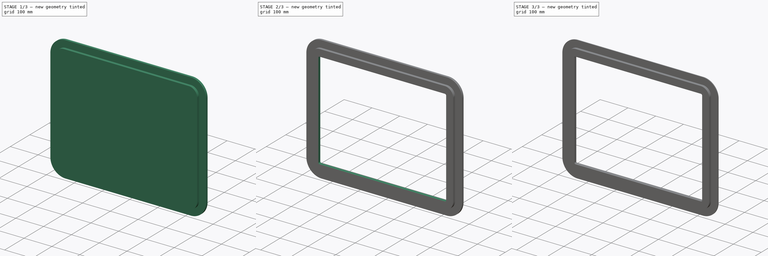
[diagram: build sequence overview — one tinted view per stage of 3, left to right]
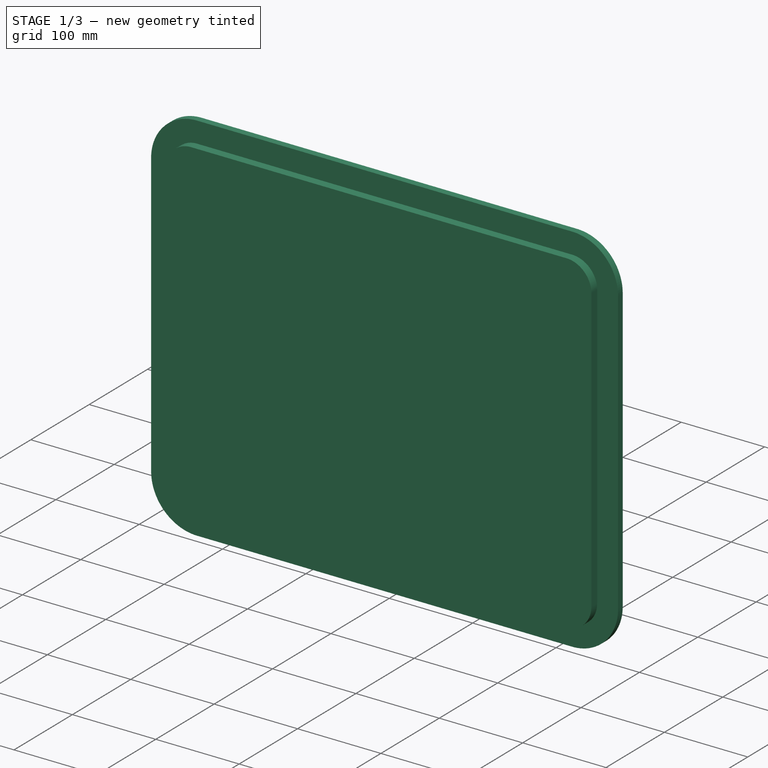
[diagram: stage 1 of 3 — iso view after this stage's code; geometry added in this stage tinted green]
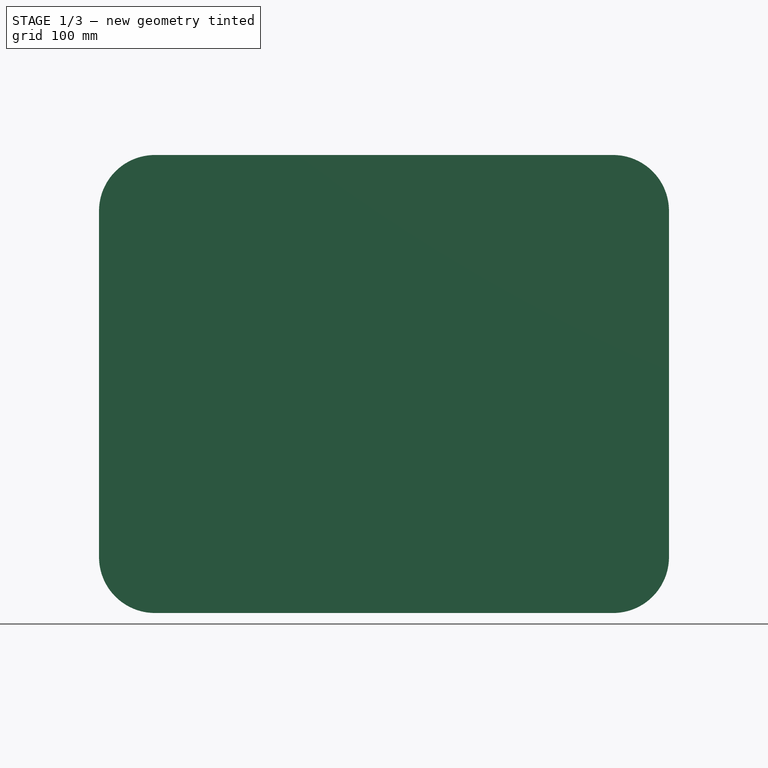
[diagram: stage 1 of 3 — front view after this stage's code; geometry added in this stage tinted green]
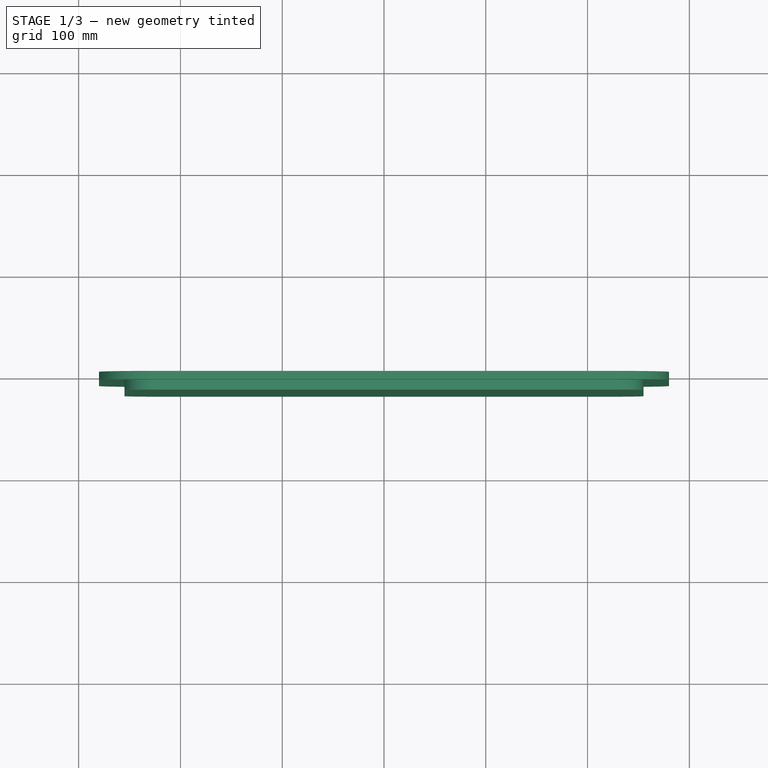
[diagram: stage 1 of 3 — top view after this stage's code; geometry added in this stage tinted green]
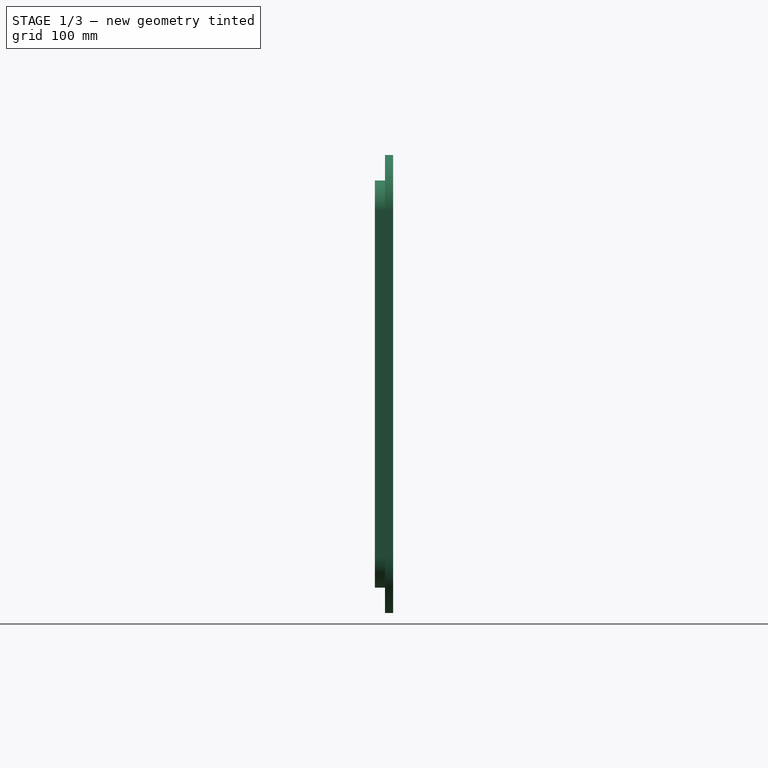
[diagram: stage 1 of 3 — right view after this stage's code; geometry added in this stage tinted green]
FCSTD DOCUMENT  (FreeCAD 0.20R29603 (Git))
Label: FensterRahmen
License: All rights reserved
LicenseURL: http://en.wikipedia.org/wiki/All_rights_reserved
objects: Sketcher::SketchObject×5, PartDesign::Pocket×3, PartDesign::Pad×2, PartDesign::Chamfer×1, PartDesign::Body×1
note: 18 computed .brp shape members not serialized (recipe doc carries the construction recipe); baked Part::Feature solids carry a one-line shape summary decoded from their .brp

FEATURE [Sketcher::SketchObject] Sketch
  FullyConstrained = true
  MapMode = 5
  Placement = pos=(0,0,0) rot=(1,0,0;1.5708rad)
  Support = -> [XZ_Plane]
  sketch-geometry (13):
    g0: LineSegment StartX=-280 StartY=170 StartZ=0 EndX=-280 EndY=-170 EndZ=0
    g1: LineSegment StartX=-225 StartY=-225 StartZ=0 EndX=225 EndY=-225 EndZ=0
    g2: LineSegment StartX=280 StartY=-170 StartZ=0 EndX=280 EndY=170 EndZ=0
    g3: LineSegment StartX=225 StartY=225 StartZ=0 EndX=-225 EndY=225 EndZ=0
    g4: GeomPoint X=0 Y=0 Z=0
    g5: ArcOfCircle CenterX=-225 CenterY=170 CenterZ=0 NormalX=0 NormalY=0 NormalZ=1 AngleXU=0 Radius=55 StartAngle=1.5708 EndAngle=3.14159
    g6: GeomPoint X=-280 Y=225 Z=0
    g7: ArcOfCircle CenterX=225 CenterY=170 CenterZ=0 NormalX=0 NormalY=0 NormalZ=1 AngleXU=0 Radius=55 StartAngle=1e-16 EndAngle=1.5708
    g8: GeomPoint X=280 Y=225 Z=0
    g9: ArcOfCircle CenterX=225 CenterY=-170 CenterZ=0 NormalX=0 NormalY=0 NormalZ=1 AngleXU=0 Radius=55 StartAngle=4.71239 EndAngle=6.28319
    g10: GeomPoint X=280 Y=-225 Z=0
    g11: ArcOfCircle CenterX=-225 CenterY=-170 CenterZ=0 NormalX=0 NormalY=0 NormalZ=1 AngleXU=0 Radius=55 StartAngle=3.14159 EndAngle=4.71239
    g12: GeomPoint X=-280 Y=-225 Z=0
  constraints (28):
    c: Horizontal(g1)
    c: Horizontal(g3)
    c: Vertical(g0)
    c: Vertical(g2)
    c: Symmetric(g10,g6,g4)
    c: Coincident(g4,g-1)
    c: DistanceX(g6,g8) = 560
    c: DistanceY(g10,g8) = 450
    c: PointOnObject(g6,g0)
    c: PointOnObject(g6,g3)
    c: Tangent(g0,g5) = -1.5708
    c: Tangent(g3,g5) = -1.5708
    c: PointOnObject(g8,g2)
    c: PointOnObject(g8,g3)
    c: Tangent(g2,g7) = -1.5708
    c: Tangent(g3,g7) = -1.5708
    c: PointOnObject(g10,g1)
    c: PointOnObject(g10,g2)
    c: Tangent(g1,g9) = -1.5708
    c: Tangent(g2,g9) = -1.5708
    c: PointOnObject(g12,g0)
    c: PointOnObject(g12,g1)
    c: Tangent(g0,g11) = -1.5708
    c: Tangent(g1,g11) = -1.5708
    c: Equal(g5,g7)
    c: Equal(g7,g9)
    c: Equal(g9,g11)
    c: Distance(g3) = 450
FEATURE [PartDesign::Pad] Pad  label="Platten_Rohling"
  Direction = (0,-1,-2e-16)
  Length = 8
  Length2 = 10
  Placement = pos=(0,0,0) rot=(1,0,0;1.5708rad)
  Profile = -> Sketch
  ReferenceAxis = -> Sketch [N_Axis]
  Type = 0
FEATURE [Sketcher::SketchObject] Sketch001
  ExternalGeometry = -> [Pad]
  FullyConstrained = true
  MapMode = 5
  Placement = pos=(0,-8,-1.8e-15) rot=(1,0,0;1.5708rad)
  Support = -> [Pad]
  sketch-geometry (13):
    g0: LineSegment StartX=-255 StartY=170 StartZ=0 EndX=-255 EndY=-170 EndZ=0
    g1: LineSegment StartX=-225 StartY=-200 StartZ=0 EndX=225 EndY=-200 EndZ=0
    g2: LineSegment StartX=255 StartY=-170 StartZ=0 EndX=255 EndY=170 EndZ=0
    g3: LineSegment StartX=225 StartY=200 StartZ=0 EndX=-225 EndY=200 EndZ=0
    g4: GeomPoint X=-9.2e-15 Y=0 Z=0
    g5: ArcOfCircle CenterX=-225 CenterY=170 CenterZ=0 NormalX=0 NormalY=0 NormalZ=1 AngleXU=0 Radius=30 StartAngle=1.5708 EndAngle=3.14159
    g6: GeomPoint X=-255 Y=200 Z=0
    g7: ArcOfCircle CenterX=225 CenterY=170 CenterZ=0 NormalX=0 NormalY=0 NormalZ=1 AngleXU=0 Radius=30 StartAngle=-5.3149e-12 EndAngle=1.5708
    g8: GeomPoint X=255 Y=200 Z=0
    g9: ArcOfCircle CenterX=225 CenterY=-170 CenterZ=0 NormalX=0 NormalY=0 NormalZ=1 AngleXU=0 Radius=30 StartAngle=4.71239 EndAngle=6.28319
    g10: GeomPoint X=255 Y=-200 Z=0
    g11: ArcOfCircle CenterX=-225 CenterY=-170 CenterZ=0 NormalX=0 NormalY=0 NormalZ=1 AngleXU=0 Radius=30 StartAngle=3.14159 EndAngle=4.71239
    g12: GeomPoint X=-255 Y=-200 Z=0
  constraints (27):
    c: Horizontal(g1)
    c: Horizontal(g3)
    c: Vertical(g0)
    c: Vertical(g2)
    c: Symmetric(g10,g6,g4)
    c: PointOnObject(g4,g-1)
    c: PointOnObject(g6,g0)
    c: PointOnObject(g6,g3)
    c: Tangent(g0,g5) = -1.5708
    c: Tangent(g3,g5) = -1.5708
    c: PointOnObject(g8,g2)
    c: PointOnObject(g8,g3)
    c: Tangent(g2,g7) = -1.5708
    c: Tangent(g3,g7) = -1.5708
    c: PointOnObject(g10,g1)
    c: PointOnObject(g10,g2)
    c: Tangent(g1,g9) = -1.5708
    c: Tangent(g2,g9) = -1.5708
    c: PointOnObject(g12,g0)
    c: PointOnObject(g12,g1)
    c: Tangent(g0,g11) = -1.5708
    c: Tangent(g1,g11) = -1.5708
    c: Equal(g2,g0)
    c: Equal(g3,g1)
    c: Distance(g-3,g1) = 25
    c: Symmetric(g0,g2,g-2)
    c: Coincident(g7,g-5)
FEATURE [PartDesign::Pad] Pad001  label="EinbauRahmen"
  BaseFeature = -> Pad
  Direction = (0,-1,-2e-16)
  Length = 10
  Length2 = 10
  Placement = pos=(0,0,0) rot=(1,0,0;1.5708rad)
  Profile = -> Sketch001
  ReferenceAxis = -> Sketch001 [N_Axis]
  Type = 0
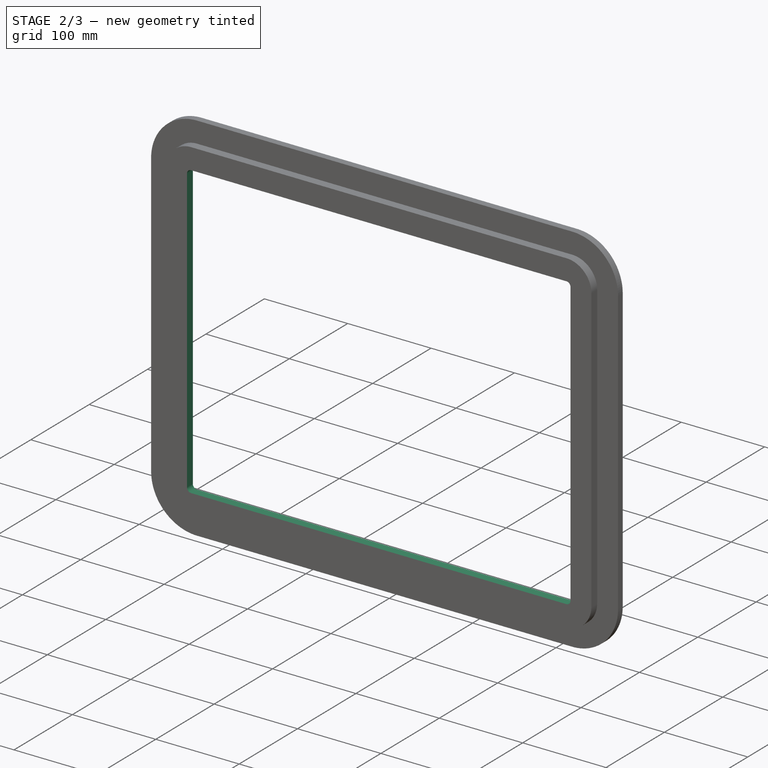
[diagram: stage 2 of 3 — iso view after this stage's code; geometry added in this stage tinted green]
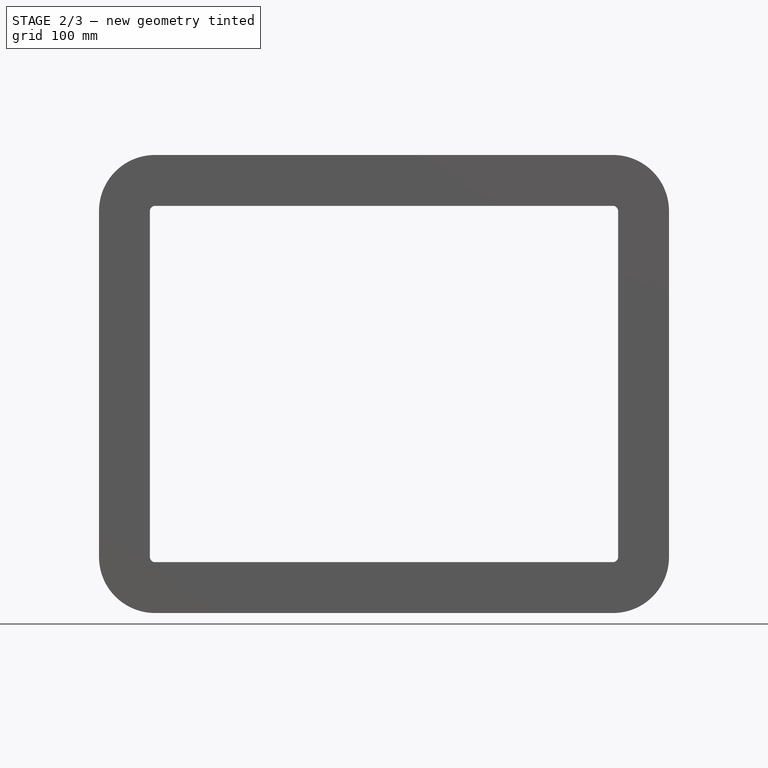
[diagram: stage 2 of 3 — front view after this stage's code; geometry added in this stage tinted green]
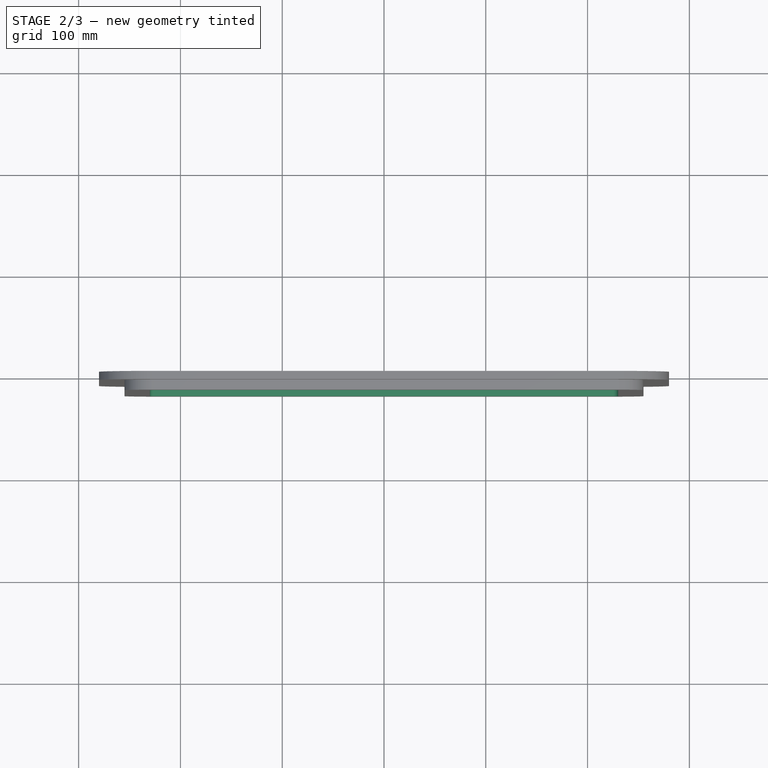
[diagram: stage 2 of 3 — top view after this stage's code; geometry added in this stage tinted green]
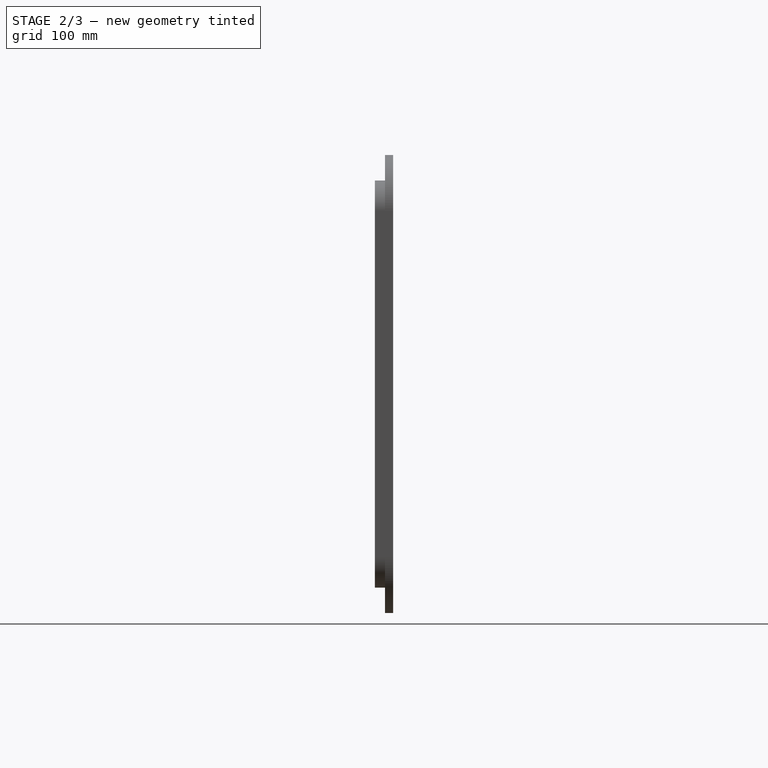
[diagram: stage 2 of 3 — right view after this stage's code; geometry added in this stage tinted green]
FEATURE [Sketcher::SketchObject] Sketch002
  ExternalGeometry = -> [Pad001]
  FullyConstrained = true
  MapMode = 5
  Placement = pos=(0,0,0) rot=(-1,0,0;1.5708rad)
  Support = -> [Pad001]
  sketch-geometry (13):
    g0: LineSegment StartX=-230 StartY=170 StartZ=0 EndX=-230 EndY=-170 EndZ=0
    g1: LineSegment StartX=-225 StartY=-175 StartZ=0 EndX=225 EndY=-175 EndZ=0
    g2: LineSegment StartX=230 StartY=-170 StartZ=0 EndX=230 EndY=170 EndZ=0
    g3: LineSegment StartX=225 StartY=175 StartZ=0 EndX=-225 EndY=175 EndZ=0
    g4: GeomPoint X=0 Y=0 Z=0
    g5: ArcOfCircle CenterX=-225 CenterY=170 CenterZ=0 NormalX=0 NormalY=0 NormalZ=1 AngleXU=0 Radius=5 StartAngle=1.5708 EndAngle=3.14159
    g6: GeomPoint X=-230 Y=175 Z=0
    g7: ArcOfCircle CenterX=225 CenterY=170 CenterZ=0 NormalX=0 NormalY=0 NormalZ=1 AngleXU=0 Radius=5 StartAngle=-1.8e-15 EndAngle=1.5708
    g8: GeomPoint X=230 Y=175 Z=0
    g9: ArcOfCircle CenterX=-225 CenterY=-170 CenterZ=0 NormalX=0 NormalY=0 NormalZ=1 AngleXU=0 Radius=5 StartAngle=3.14159 EndAngle=4.71239
    g10: GeomPoint X=-230 Y=-175 Z=0
    g11: ArcOfCircle CenterX=225 CenterY=-170 CenterZ=0 NormalX=0 NormalY=0 NormalZ=1 AngleXU=0 Radius=5 StartAngle=4.71239 EndAngle=6.28319
    g12: GeomPoint X=230 Y=-175 Z=0
  constraints (27):
    c: Horizontal(g1)
    c: Horizontal(g3)
    c: Vertical(g0)
    c: Vertical(g2)
    c: Symmetric(g12,g6,g4)
    c: Coincident(g4,g-1)
    c: PointOnObject(g6,g0)
    c: PointOnObject(g6,g3)
    c: Tangent(g0,g5) = -1.5708
    c: Tangent(g3,g5) = -1.5708
    c: PointOnObject(g8,g2)
    c: PointOnObject(g8,g3)
    c: Tangent(g2,g7) = -1.5708
    c: Tangent(g3,g7) = -1.5708
    c: PointOnObject(g10,g0)
    c: PointOnObject(g10,g1)
    c: Tangent(g0,g9) = -1.5708
    c: Tangent(g1,g9) = -1.5708
    c: PointOnObject(g12,g1)
    c: PointOnObject(g12,g2)
    c: Tangent(g1,g11) = -1.5708
    c: Tangent(g2,g11) = -1.5708
    c: Distance(g-4,g2) = 50
    c: Equal(g5,g7)
    c: Equal(g7,g11)
    c: Equal(g11,g9)
    c: Coincident(g-4,g11)
FEATURE [PartDesign::Pocket] Pocket  label="FensterAusschnitt"
  BaseFeature = -> Pad001
  Direction = (0,-1,-2e-16)
  Length = 18
  Length2 = 5
  Placement = pos=(0,0,0) rot=(1,0,0;1.5708rad)
  Profile = -> Sketch002
  ReferenceAxis = -> Sketch002 [N_Axis]
  Type = 0
FEATURE [Sketcher::SketchObject] Sketch003
  ExternalGeometry = -> [Pocket]
  FullyConstrained = true
  MapMode = 5
  Placement = pos=(0,0,0) rot=(-1,0,0;1.5708rad)
  Support = -> [Pocket]
  sketch-geometry (13):
    g0: LineSegment StartX=-250 StartY=170 StartZ=0 EndX=-250 EndY=-170 EndZ=0
    g1: LineSegment StartX=-225 StartY=-195 StartZ=0 EndX=225 EndY=-195 EndZ=0
    g2: LineSegment StartX=250 StartY=-170 StartZ=0 EndX=250 EndY=170 EndZ=0
    g3: LineSegment StartX=225 StartY=195 StartZ=0 EndX=-225 EndY=195 EndZ=0
    g4: GeomPoint X=0 Y=0 Z=0
    g5: ArcOfCircle CenterX=-225 CenterY=170 CenterZ=0 NormalX=0 NormalY=0 NormalZ=1 AngleXU=0 Radius=25 StartAngle=1.5708 EndAngle=3.14159
    g6: GeomPoint X=-250 Y=195 Z=0
    g7: ArcOfCircle CenterX=225 CenterY=170 CenterZ=0 NormalX=0 NormalY=0 NormalZ=1 AngleXU=0 Radius=25 StartAngle=4e-16 EndAngle=1.5708
    g8: GeomPoint X=250 Y=195 Z=0
    g9: ArcOfCircle CenterX=225 CenterY=-170 CenterZ=0 NormalX=0 NormalY=0 NormalZ=1 AngleXU=0 Radius=25 StartAngle=4.71239 EndAngle=6.28319
    g10: GeomPoint X=250 Y=-195 Z=0
    g11: ArcOfCircle CenterX=-225 CenterY=-170 CenterZ=0 NormalX=0 NormalY=0 NormalZ=1 AngleXU=0 Radius=25 StartAngle=3.14159 EndAngle=4.71239
    g12: GeomPoint X=-250 Y=-195 Z=0
  constraints (27):
    c: Horizontal(g1)
    c: Horizontal(g3)
    c: Vertical(g0)
    c: Vertical(g2)
    c: Symmetric(g10,g6,g4)
    c: Coincident(g4,g-1)
    c: PointOnObject(g6,g0)
    c: PointOnObject(g6,g3)
    c: Tangent(g0,g5) = -1.5708
    c: Tangent(g3,g5) = -1.5708
    c: PointOnObject(g8,g2)
    c: PointOnObject(g8,g3)
    c: Tangent(g2,g7) = -1.5708
    c: Tangent(g3,g7) = -1.5708
    c: PointOnObject(g10,g1)
    c: PointOnObject(g10,g2)
    c: Tangent(g1,g9) = -1.5708
    c: Tangent(g2,g9) = -1.5708
    c: PointOnObject(g12,g0)
    c: PointOnObject(g12,g1)
    c: Tangent(g0,g11) = -1.5708
    c: Tangent(g1,g11) = -1.5708
    c: Distance(g2,g-4) = 30
    c: Equal(g11,g5)
    c: Equal(g5,g7)
    c: Equal(g7,g9)
    c: Coincident(g9,g-3)
FEATURE [PartDesign::Pocket] Pocket001
  BaseFeature = -> Pocket
  Direction = (0,-1,-2e-16)
  Length = 8
  Length2 = 5
  Placement = pos=(0,0,0) rot=(1,0,0;1.5708rad)
  Profile = -> Sketch003
  ReferenceAxis = -> Sketch003 [N_Axis]
  Type = 0
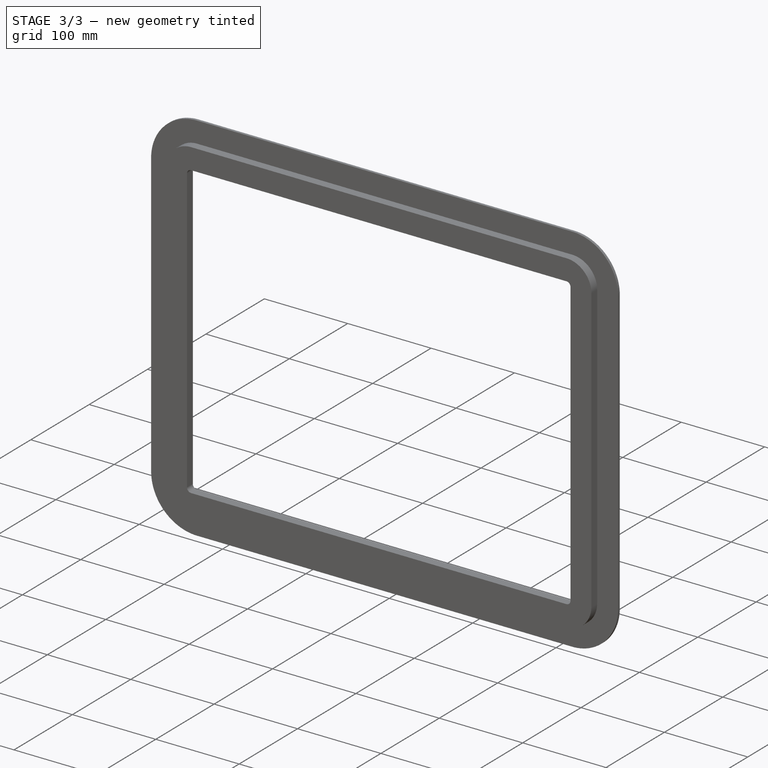
[diagram: stage 3 of 3 — iso view after this stage's code; geometry added in this stage tinted green]
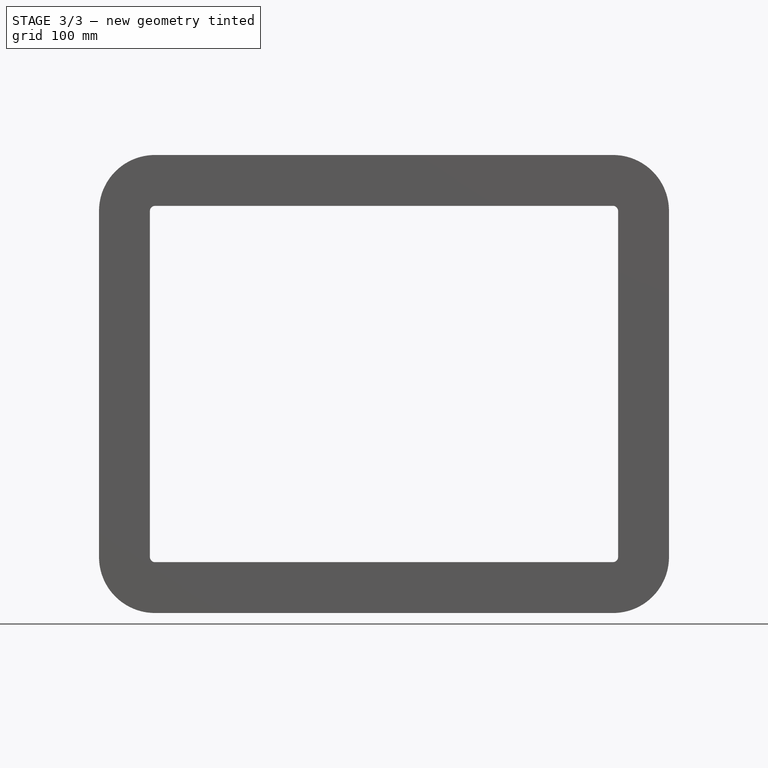
[diagram: stage 3 of 3 — front view after this stage's code; geometry added in this stage tinted green]
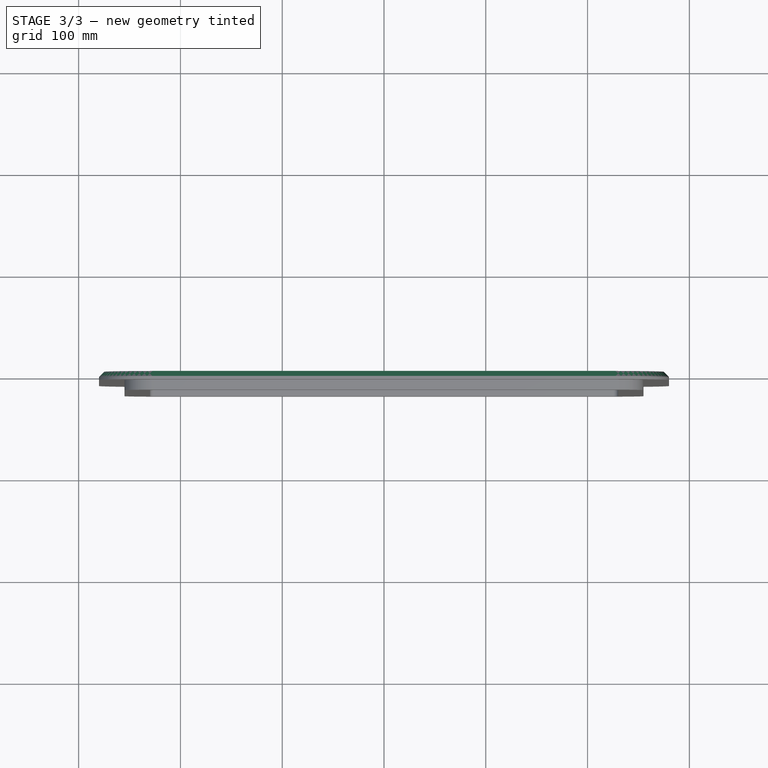
[diagram: stage 3 of 3 — top view after this stage's code; geometry added in this stage tinted green]
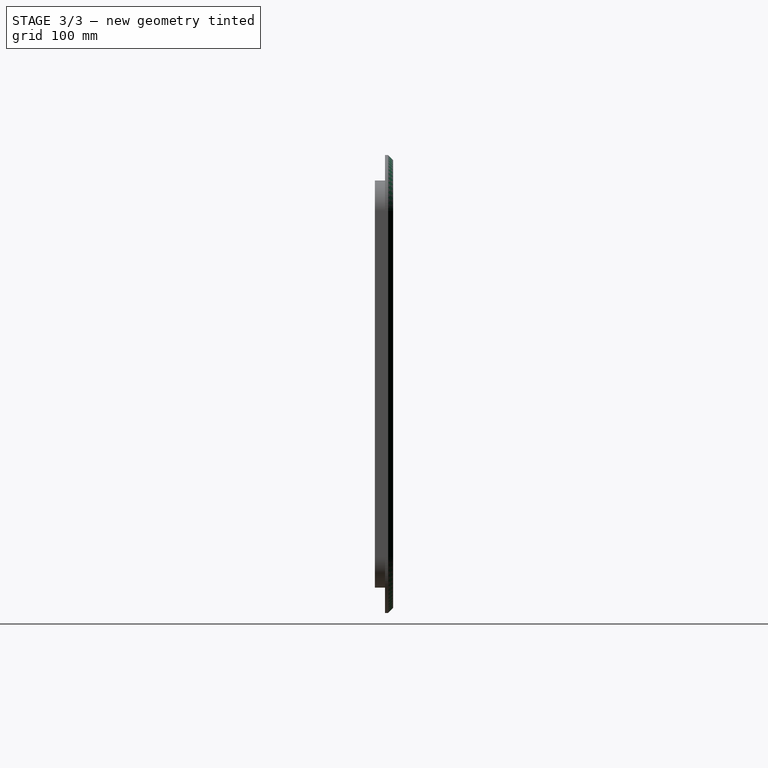
[diagram: stage 3 of 3 — right view after this stage's code; geometry added in this stage tinted green]
FEATURE [Sketcher::SketchObject] Sketch004
  ExternalGeometry = -> [Pocket001]
  FullyConstrained = true
  MapMode = 5
  Placement = pos=(0,-8,-1.8e-15) rot=(-1,0,0;1.5708rad)
  Support = -> [Pocket001]
  sketch-geometry (26):
    g0: LineSegment StartX=-240 StartY=170 StartZ=0 EndX=-240 EndY=-170 EndZ=0
    g1: LineSegment StartX=-225 StartY=-185 StartZ=0 EndX=225 EndY=-185 EndZ=0
    g2: LineSegment StartX=240 StartY=-170 StartZ=0 EndX=240 EndY=170 EndZ=0
    g3: LineSegment StartX=225 StartY=185 StartZ=0 EndX=-225 EndY=185 EndZ=0
    g4: GeomPoint X=0 Y=0 Z=0
    g5: ArcOfCircle CenterX=-225 CenterY=170 CenterZ=0 NormalX=0 NormalY=0 NormalZ=1 AngleXU=0 Radius=15 StartAngle=1.5708 EndAngle=3.14159
    g6: GeomPoint X=-240 Y=185 Z=0
    g7: ArcOfCircle CenterX=225 CenterY=170 CenterZ=0 NormalX=0 NormalY=0 NormalZ=1 AngleXU=0 Radius=15 StartAngle=0 EndAngle=1.5708
    g8: GeomPoint X=240 Y=185 Z=0
    g9: ArcOfCircle CenterX=-225 CenterY=-170 CenterZ=0 NormalX=0 NormalY=0 NormalZ=1 AngleXU=0 Radius=15 StartAngle=3.14159 EndAngle=4.71239
    g10: GeomPoint X=-240 Y=-185 Z=0
    g11: ArcOfCircle CenterX=225 CenterY=-170 CenterZ=0 NormalX=0 NormalY=0 NormalZ=1 AngleXU=0 Radius=15 StartAngle=4.71239 EndAngle=6.28319
    g12: GeomPoint X=240 Y=-185 Z=0
    g13: LineSegment StartX=-244.5 StartY=170 StartZ=0 EndX=-244.5 EndY=-170 EndZ=0
    g14: LineSegment StartX=-225 StartY=-189.5 StartZ=0 EndX=225 EndY=-189.5 EndZ=0
    g15: LineSegment StartX=244.5 StartY=-170 StartZ=0 EndX=244.5 EndY=170 EndZ=0
    g16: LineSegment StartX=225 StartY=189.5 StartZ=0 EndX=-225 EndY=189.5 EndZ=0
    g17: GeomPoint X=0 Y=0 Z=0
    g18: ArcOfCircle CenterX=-225 CenterY=170 CenterZ=0 NormalX=0 NormalY=0 NormalZ=1 AngleXU=0 Radius=19.5 StartAngle=1.5708 EndAngle=3.14159
    g19: GeomPoint X=-244.5 Y=189.5 Z=0
    g20: ArcOfCircle CenterX=225 CenterY=170 CenterZ=0 NormalX=0 NormalY=0 NormalZ=1 AngleXU=0 Radius=19.5 StartAngle=0 EndAngle=1.5708
    g21: GeomPoint X=244.5 Y=189.5 Z=0
    g22: ArcOfCircle CenterX=225 CenterY=-170 CenterZ=0 NormalX=0 NormalY=0 NormalZ=1 AngleXU=0 Radius=19.5 StartAngle=4.71239 EndAngle=6.28319
    g23: GeomPoint X=244.5 Y=-189.5 Z=0
    g24: ArcOfCircle CenterX=-225 CenterY=-170 CenterZ=0 NormalX=0 NormalY=0 NormalZ=1 AngleXU=0 Radius=19.5 StartAngle=3.14159 EndAngle=4.71239
    g25: GeomPoint X=-244.5 Y=-189.5 Z=0
  constraints (54):
    c: Horizontal(g1)
    c: Horizontal(g3)
    c: Vertical(g0)
    c: Vertical(g2)
    c: Symmetric(g12,g6,g4)
    c: Coincident(g4,g-1)
    c: PointOnObject(g6,g0)
    c: PointOnObject(g6,g3)
    c: Tangent(g0,g5) = -1.5708
    c: Tangent(g3,g5) = -1.5708
    c: PointOnObject(g8,g2)
    c: PointOnObject(g8,g3)
    c: Tangent(g2,g7) = -1.5708
    c: Tangent(g3,g7) = -1.5708
    c: PointOnObject(g10,g0)
    c: PointOnObject(g10,g1)
    c: Tangent(g0,g9) = -1.5708
    c: Tangent(g1,g9) = -1.5708
    c: PointOnObject(g12,g1)
    c: PointOnObject(g12,g2)
    c: Tangent(g1,g11) = -1.5708
    c: Tangent(g2,g11) = -1.5708
    c: Equal(g5,g7)
    c: Equal(g7,g11)
    c: Equal(g11,g9)
    c: Distance(g1,g-3) = 10
    c: Horizontal(g14)
    c: Horizontal(g16)
    c: Vertical(g13)
    c: Vertical(g15)
    c: Symmetric(g23,g19,g17)
    c: Coincident(g17,g4)
    c: PointOnObject(g19,g13)
    c: PointOnObject(g19,g16)
    c: Tangent(g13,g18) = -1.5708
    c: Tangent(g16,g18) = -1.5708
    c: PointOnObject(g21,g15)
    c: PointOnObject(g21,g16)
    c: Tangent(g15,g20) = -1.5708
    c: Tangent(g16,g20) = -1.5708
    c: PointOnObject(g23,g14)
    c: PointOnObject(g23,g15)
    c: Tangent(g14,g22) = -1.5708
    c: Tangent(g15,g22) = -1.5708
    c: PointOnObject(g25,g13)
    c: PointOnObject(g25,g14)
    c: Tangent(g13,g24) = -1.5708
    c: Tangent(g14,g24) = -1.5708
    c: Equal(g18,g20)
    c: Equal(g20,g22)
    c: Equal(g22,g24)
    c: Distance(g15,g2) = 4.5
    c: Coincident(g20,g7)
    c: Coincident(g11,g-4)
FEATURE [PartDesign::Pocket] Pocket002
  BaseFeature = -> Pocket001
  Direction = (0,-1,-2e-16)
  Length = 5
  Length2 = 5
  Placement = pos=(0,0,0) rot=(1,0,0;1.5708rad)
  Profile = -> Sketch004
  ReferenceAxis = -> Sketch004 [N_Axis]
  Type = 0
FEATURE [PartDesign::Chamfer] Chamfer
  Angle = 45
  Base = -> Pocket002 [Edge11,Edge6,Edge3,Edge9,Edge12,Edge14,Edge15,Edge13]
  BaseFeature = -> Pocket002
  ChamferType = 0
  FlipDirection = false
  Placement = pos=(0,0,0) rot=(1,0,0;1.5708rad)
  Size = 5
  Size2 = 1
  SupportTransform = false
  UseAllEdges = false
FEATURE [PartDesign::Body] Body
  Group = -> [Sketch,Pad,Sketch001,Pad001,Sketch002,Pocket,Sketch003,Pocket001,Sketch004,Pocket002,Chamfer]
  Origin = -> Origin
  Tip = -> Chamfer
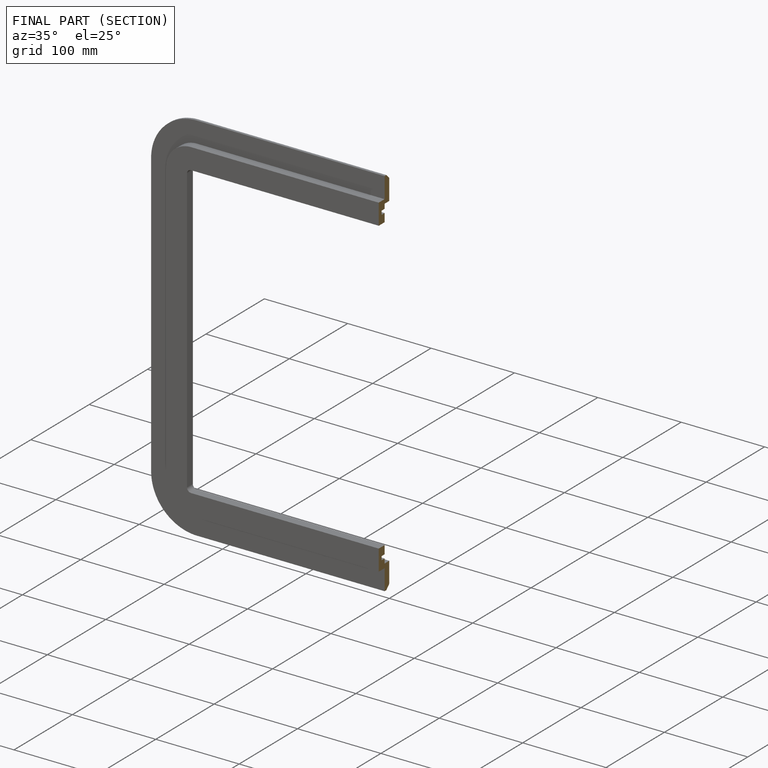
[diagram: finished part — half-section view (interior)]
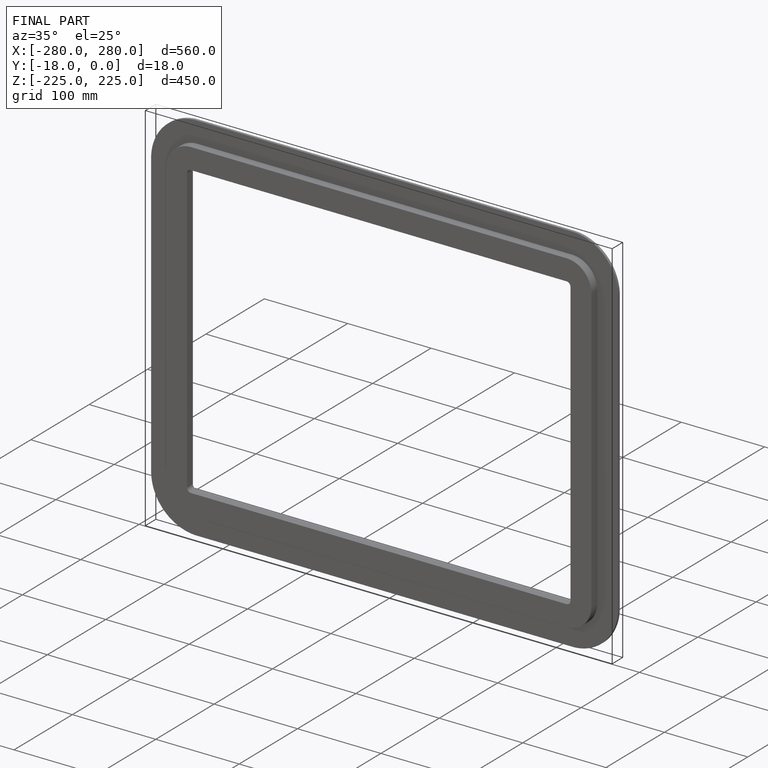
[diagram: finished part — iso view with bounding-box wireframe]
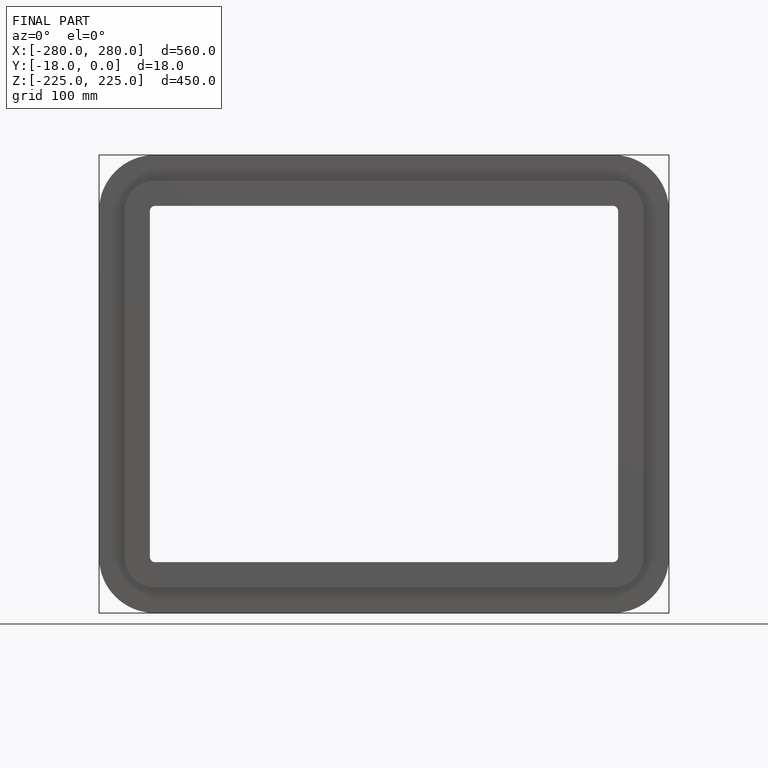
[diagram: finished part — front view with bounding-box wireframe]
